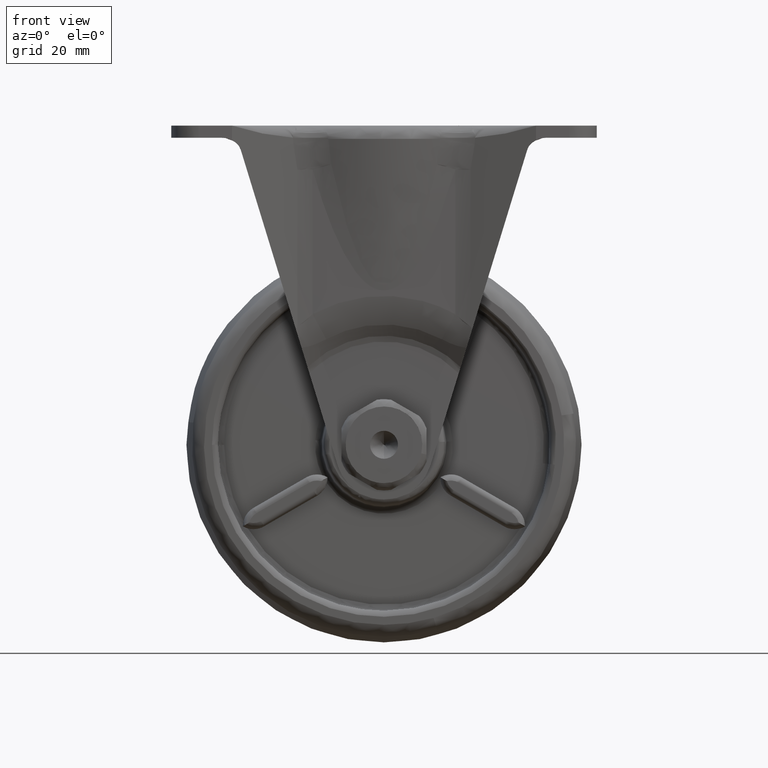
[diagram: clean part render]
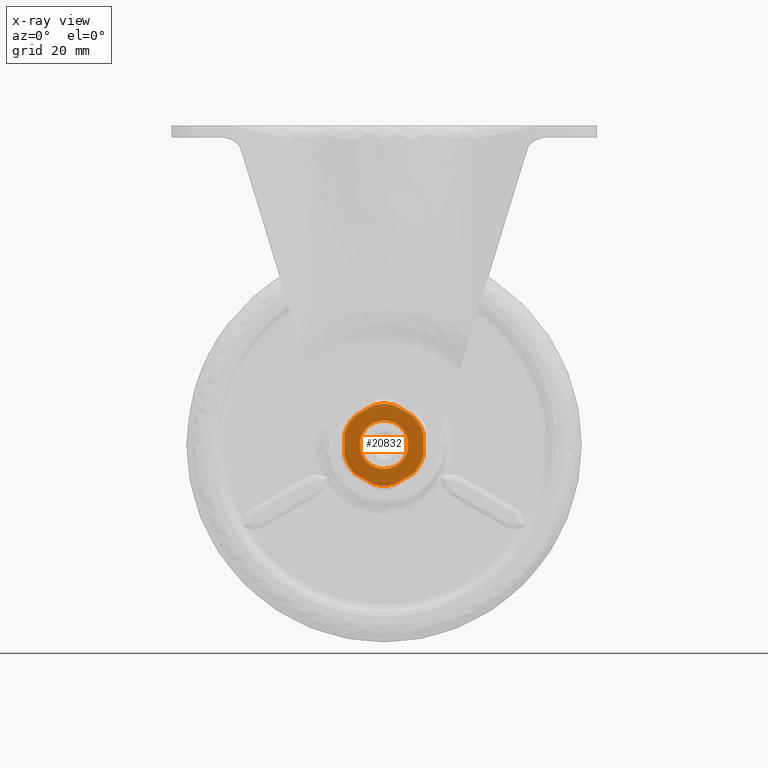
[diagram: x-ray — body ghosted, one internal face saturated and labeled with its STEP entity id]
A machine part, front view, then the same camera in x-ray: the body is ghosted and one INTERNAL B-rep face — a face not visible from any outside direction — is saturated and labeled: STEP entity #20832.
In plain terms, the highlighted face is a freeform B-spline surface patch.
Its self-contained STEP definition (entity closure, byte-faithful):
#17493=CARTESIAN_POINT('',(3.972038105448002,18.005906000000000,-0.472136938683087));
#17494=VERTEX_POINT('',#17493);
#17500=CARTESIAN_POINT('',(0.0,18.005906000000000,4.000000000000002));
#17501=VERTEX_POINT('',#17500);
#17502=CARTESIAN_POINT('',(3.972038105448002,18.005905999999996,-0.472136938683087));
#17503=CARTESIAN_POINT('',(4.0,18.005905999999992,-0.236896478664286));
#17504=CARTESIAN_POINT('',(4.0,18.005906000000000,1.794263E-015));
#17505=CARTESIAN_POINT('',(4.000000000000000,18.005906000000007,4.000000000000003));
#17506=CARTESIAN_POINT('',(0.0,18.005906000000000,4.000000000000002));
#17514=(BOUNDED_CURVE()B_SPLINE_CURVE(2,(#17502,#17503,#17504,#17505,#17506),.UNSPECIFIED.,.F.,.U.)B_SPLINE_CURVE_WITH_KNOTS((3,2,3),(0.229562473510874,0.250000000000000,0.500000000000000),.UNSPECIFIED.)CURVE()GEOMETRIC_REPRESENTATION_ITEM()RATIONAL_B_SPLINE_CURVE((0.956026754178536,0.976055948328059,1.0,0.707106781186548,1.0))REPRESENTATION_ITEM(''));
#17515=EDGE_CURVE('',#17494,#17501,#17514,.T.);
#17517=CARTESIAN_POINT('',(-3.992539193673980,18.005906000000000,0.244194158359952));
#17518=VERTEX_POINT('',#17517);
#17519=CARTESIAN_POINT('',(0.0,18.005906000000000,4.000000000000002));
#17520=CARTESIAN_POINT('',(-3.762824267206318,18.005906000000000,4.000000000000002));
#17521=CARTESIAN_POINT('',(-3.992539193673979,18.005906000000000,0.244194158359952));
#17529=(BOUNDED_CURVE()B_SPLINE_CURVE(2,(#17519,#17520,#17521),.UNSPECIFIED.,.F.,.U.)B_SPLINE_CURVE_WITH_KNOTS((3,3),(0.500000000000000,0.739332962222907),.UNSPECIFIED.)CURVE()GEOMETRIC_REPRESENTATION_ITEM()RATIONAL_B_SPLINE_CURVE((1.0,0.719603993305498,0.976072041632349))REPRESENTATION_ITEM(''));
#17530=EDGE_CURVE('',#17501,#17518,#17529,.T.);
#17604=CARTESIAN_POINT('',(0.0,18.005906000000000,-3.999999999999998));
#17605=VERTEX_POINT('',#17604);
#17606=CARTESIAN_POINT('',(-3.992539193673980,18.005906000000000,0.244194158359952));
#17607=CARTESIAN_POINT('',(-4.000000000000000,18.005906000000000,0.122211053415498));
#17608=CARTESIAN_POINT('',(-4.0,18.005906000000000,1.794263E-015));
#17609=CARTESIAN_POINT('',(-4.000000000000000,18.005906000000007,-3.999999999999998));
#17610=CARTESIAN_POINT('',(0.0,18.005906000000000,-3.999999999999998));
#17618=(BOUNDED_CURVE()B_SPLINE_CURVE(2,(#17606,#17607,#17608,#17609,#17610),.UNSPECIFIED.,.F.,.U.)B_SPLINE_CURVE_WITH_KNOTS((3,2,3),(0.739332962222908,0.750000000000000,1.0),.UNSPECIFIED.)CURVE()GEOMETRIC_REPRESENTATION_ITEM()RATIONAL_B_SPLINE_CURVE((0.976072041632351,0.987502787881051,1.0,0.707106781186548,1.0))REPRESENTATION_ITEM(''));
#17619=EDGE_CURVE('',#17518,#17605,#17618,.T.);
#17621=CARTESIAN_POINT('',(0.0,18.005906000000000,-3.999999999999998));
#17622=CARTESIAN_POINT('',(3.552698103704492,18.005906000000007,-3.999999999999998));
#17623=CARTESIAN_POINT('',(3.972038105448002,18.005905999999996,-0.472136938683087));
#17631=(BOUNDED_CURVE()B_SPLINE_CURVE(2,(#17621,#17622,#17623),.UNSPECIFIED.,.F.,.U.)B_SPLINE_CURVE_WITH_KNOTS((3,3),(0.0,0.229562473510874),.UNSPECIFIED.)CURVE()GEOMETRIC_REPRESENTATION_ITEM()RATIONAL_B_SPLINE_CURVE((1.0,0.731050832858489,0.956026754178536))REPRESENTATION_ITEM(''));
#17632=EDGE_CURVE('',#17605,#17494,#17631,.T.);
#19599=CARTESIAN_POINT('',(-4.826166831863969,18.005906000000000,4.719165454458040));
#19600=VERTEX_POINT('',#19599);
#19622=CARTESIAN_POINT('',(-1.673832824275485,18.005906000000000,6.539166044069530));
#19623=VERTEX_POINT('',#19622);
#19624=CARTESIAN_POINT('',(-4.826166831863969,18.005906000000000,4.719165454458040));
#19625=CARTESIAN_POINT('',(-1.673832824275485,18.005906000000000,6.539166044069530));
#19626=QUASI_UNIFORM_CURVE('',1,(#19624,#19625),.UNSPECIFIED.,.F.,.U.);
#19627=EDGE_CURVE('',#19600,#19623,#19626,.T.);
#19675=CARTESIAN_POINT('',(1.673829642336460,18.005906000000000,6.539166858550850));
#19676=VERTEX_POINT('',#19675);
#19698=CARTESIAN_POINT('',(4.826169251197100,18.005906000000000,4.719162980268180));
#19699=VERTEX_POINT('',#19698);
#19700=CARTESIAN_POINT('',(1.673829642336460,18.005906000000000,6.539166858550850));
#19701=CARTESIAN_POINT('',(4.826169251197100,18.005906000000000,4.719162980268180));
#19702=QUASI_UNIFORM_CURVE('',1,(#19700,#19701),.UNSPECIFIED.,.F.,.U.);
#19703=EDGE_CURVE('',#19676,#19699,#19702,.T.);
#19736=CARTESIAN_POINT('',(6.500000000000229,18.005906000000000,1.820002438331070));
#19737=VERTEX_POINT('',#19736);
#19738=CARTESIAN_POINT('',(6.500000000000229,18.005906000000000,-1.820002438331065));
#19739=VERTEX_POINT('',#19738);
#19740=CARTESIAN_POINT('',(6.500000000000229,18.005906000000000,1.820002438331070));
#19741=CARTESIAN_POINT('',(6.500000000000229,18.005906000000000,-1.820002438331065));
#19742=QUASI_UNIFORM_CURVE('',1,(#19740,#19741),.UNSPECIFIED.,.F.,.U.);
#19743=EDGE_CURVE('',#19737,#19739,#19742,.T.);
#19838=CARTESIAN_POINT('',(4.826169251196830,18.005906000000000,-4.719162980268450));
#19839=VERTEX_POINT('',#19838);
#19861=CARTESIAN_POINT('',(1.673829642336825,18.005906000000000,-6.539166858550750));
#19862=VERTEX_POINT('',#19861);
#19863=CARTESIAN_POINT('',(4.826169251196830,18.005906000000000,-4.719162980268450));
#19864=CARTESIAN_POINT('',(1.673829642336825,18.005906000000000,-6.539166858550750));
#19865=QUASI_UNIFORM_CURVE('',1,(#19863,#19864),.UNSPECIFIED.,.F.,.U.);
#19866=EDGE_CURVE('',#19839,#19862,#19865,.T.);
#19914=CARTESIAN_POINT('',(-1.673832824275785,18.005906000000000,-6.539166044069449));
#19915=VERTEX_POINT('',#19914);
#19937=CARTESIAN_POINT('',(-4.826166831863850,18.005906000000000,-4.719165454458150));
#19938=VERTEX_POINT('',#19937);
#19939=CARTESIAN_POINT('',(-1.673832824275785,18.005906000000000,-6.539166044069449));
#19940=CARTESIAN_POINT('',(-4.826166831863850,18.005906000000000,-4.719165454458150));
#19941=QUASI_UNIFORM_CURVE('',1,(#19939,#19940),.UNSPECIFIED.,.F.,.U.);
#19942=EDGE_CURVE('',#19915,#19938,#19941,.T.);
#19975=CARTESIAN_POINT('',(-6.499999999999770,18.005906000000000,-1.820002438332690));
#19976=VERTEX_POINT('',#19975);
#19977=CARTESIAN_POINT('',(-6.499999999999770,18.005906000000000,1.820002438332695));
#19978=VERTEX_POINT('',#19977);
#19979=CARTESIAN_POINT('',(-6.499999999999770,18.005906000000000,-1.820002438332690));
#19980=CARTESIAN_POINT('',(-6.499999999999770,18.005906000000000,1.820002438332695));
#19981=QUASI_UNIFORM_CURVE('',1,(#19979,#19980),.UNSPECIFIED.,.F.,.U.);
#19982=EDGE_CURVE('',#19976,#19978,#19981,.T.);
#20610=CARTESIAN_POINT('',(-6.499999999999774,18.005906000000000,-1.820002438332690));
#20611=CARTESIAN_POINT('',(-6.034133318288173,18.005906000000003,-3.483809786799418));
#20612=CARTESIAN_POINT('',(-4.826166831863854,18.005906000000000,-4.719165454458149));
#20620=(BOUNDED_CURVE()B_SPLINE_CURVE(2,(#20610,#20611,#20612),.UNSPECIFIED.,.F.,.U.)CURVE()GEOMETRIC_REPRESENTATION_ITEM()QUASI_UNIFORM_CURVE()RATIONAL_B_SPLINE_CURVE((1.0,0.968766313227062,1.0))REPRESENTATION_ITEM(''));
#20621=EDGE_CURVE('',#19976,#19938,#20620,.T.);
#20646=CARTESIAN_POINT('',(-1.673832824275785,18.005906000000000,-6.539166044069451));
#20647=CARTESIAN_POINT('',(-0.000001695210918,18.005905999999996,-6.967617236047414));
#20648=CARTESIAN_POINT('',(1.673829642336824,18.005906000000000,-6.539166858550756));
#20656=(BOUNDED_CURVE()B_SPLINE_CURVE(2,(#20646,#20647,#20648),.UNSPECIFIED.,.F.,.U.)CURVE()GEOMETRIC_REPRESENTATION_ITEM()QUASI_UNIFORM_CURVE()RATIONAL_B_SPLINE_CURVE((1.0,0.968766368955295,1.0))REPRESENTATION_ITEM(''));
#20657=EDGE_CURVE('',#19915,#19862,#20656,.T.);
#20682=CARTESIAN_POINT('',(4.826169251196831,18.005906000000000,-4.719162980268450));
#20683=CARTESIAN_POINT('',(6.034133815378133,18.005906000000000,-3.483808011482111));
#20684=CARTESIAN_POINT('',(6.500000000000227,18.005906000000000,-1.820002438331065));
#20692=(BOUNDED_CURVE()B_SPLINE_CURVE(2,(#20682,#20683,#20684),.UNSPECIFIED.,.F.,.U.)CURVE()GEOMETRIC_REPRESENTATION_ITEM()QUASI_UNIFORM_CURVE()RATIONAL_B_SPLINE_CURVE((1.0,0.968766376790714,1.0))REPRESENTATION_ITEM(''));
#20693=EDGE_CURVE('',#19839,#19739,#20692,.T.);
#20718=CARTESIAN_POINT('',(6.500000000000227,18.005906000000000,1.820002438331069));
#20719=CARTESIAN_POINT('',(6.034133815378189,18.005906000000003,3.483808011481917));
#20720=CARTESIAN_POINT('',(4.826169251197101,18.005906000000000,4.719162980268179));
#20728=(BOUNDED_CURVE()B_SPLINE_CURVE(2,(#20718,#20719,#20720),.UNSPECIFIED.,.F.,.U.)CURVE()GEOMETRIC_REPRESENTATION_ITEM()QUASI_UNIFORM_CURVE()RATIONAL_B_SPLINE_CURVE((1.0,0.968766376790721,1.0))REPRESENTATION_ITEM(''));
#20729=EDGE_CURVE('',#19737,#19699,#20728,.T.);
#20752=CARTESIAN_POINT('',(-4.826166831863966,18.005906000000000,4.719165454458039));
#20753=CARTESIAN_POINT('',(-6.034133318288195,18.005906000000000,3.483809786799342));
#20754=CARTESIAN_POINT('',(-6.499999999999773,18.005906000000000,1.820002438332696));
#20762=(BOUNDED_CURVE()B_SPLINE_CURVE(2,(#20752,#20753,#20754),.UNSPECIFIED.,.F.,.U.)CURVE()GEOMETRIC_REPRESENTATION_ITEM()QUASI_UNIFORM_CURVE()RATIONAL_B_SPLINE_CURVE((1.0,0.968766313227065,1.0))REPRESENTATION_ITEM(''));
#20763=EDGE_CURVE('',#19600,#19978,#20762,.T.);
#20790=CARTESIAN_POINT('',(1.673829642336461,18.005906000000000,6.539166858550852));
#20791=CARTESIAN_POINT('',(-0.000001695210952,18.005906000000003,6.967617236047326));
#20792=CARTESIAN_POINT('',(-1.673832824275484,18.005906000000000,6.539166044069532));
#20800=(BOUNDED_CURVE()B_SPLINE_CURVE(2,(#20790,#20791,#20792),.UNSPECIFIED.,.F.,.U.)CURVE()GEOMETRIC_REPRESENTATION_ITEM()QUASI_UNIFORM_CURVE()RATIONAL_B_SPLINE_CURVE((1.0,0.968766368955307,1.0))REPRESENTATION_ITEM(''));
#20801=EDGE_CURVE('',#19676,#19623,#20800,.T.);
#20807=CARTESIAN_POINT('',(-7.149349974803249,18.005906000000000,7.424317676277196));
#20808=CARTESIAN_POINT('',(-7.149349974803249,18.005906000000000,-7.424317917675764));
#20809=CARTESIAN_POINT('',(7.149350323490880,18.005906000000000,7.424317676277196));
#20810=CARTESIAN_POINT('',(7.149350323490880,18.005906000000000,-7.424317917675764));
#20811=B_SPLINE_SURFACE_WITH_KNOTS('',1,1,((#20807,#20809),(#20808,#20810)),.UNSPECIFIED.,.F.,.F.,.U.,(2,2),(2,2),(0.0,14.848635593952960),(0.0,14.298700298294129),.UNSPECIFIED.);
#20812=ORIENTED_EDGE('',*,*,#20801,.T.);
#20813=ORIENTED_EDGE('',*,*,#19627,.F.);
#20814=ORIENTED_EDGE('',*,*,#20763,.T.);
#20815=ORIENTED_EDGE('',*,*,#19982,.F.);
#20816=ORIENTED_EDGE('',*,*,#20621,.T.);
#20817=ORIENTED_EDGE('',*,*,#19942,.F.);
#20818=ORIENTED_EDGE('',*,*,#20657,.T.);
#20819=ORIENTED_EDGE('',*,*,#19866,.F.);
#20820=ORIENTED_EDGE('',*,*,#20693,.T.);
#20821=ORIENTED_EDGE('',*,*,#19743,.F.);
#20822=ORIENTED_EDGE('',*,*,#20729,.T.);
#20823=ORIENTED_EDGE('',*,*,#19703,.F.);
#20824=EDGE_LOOP('',(#20812,#20813,#20814,#20815,#20816,#20817,#20818,#20819,#20820,#20821,#20822,#20823));
#20825=FACE_OUTER_BOUND('',#20824,.T.);
#20826=ORIENTED_EDGE('',*,*,#17530,.F.);
#20827=ORIENTED_EDGE('',*,*,#17515,.F.);
#20828=ORIENTED_EDGE('',*,*,#17632,.F.);
#20829=ORIENTED_EDGE('',*,*,#17619,.F.);
#20830=EDGE_LOOP('',(#20826,#20827,#20828,#20829));
#20831=FACE_BOUND('',#20830,.T.);
#20832=ADVANCED_FACE('',(#20825,#20831),#20811,.T.);